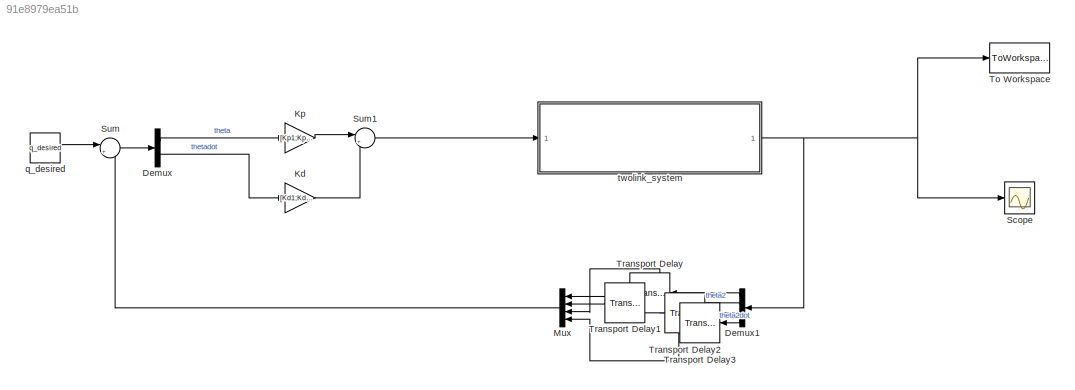
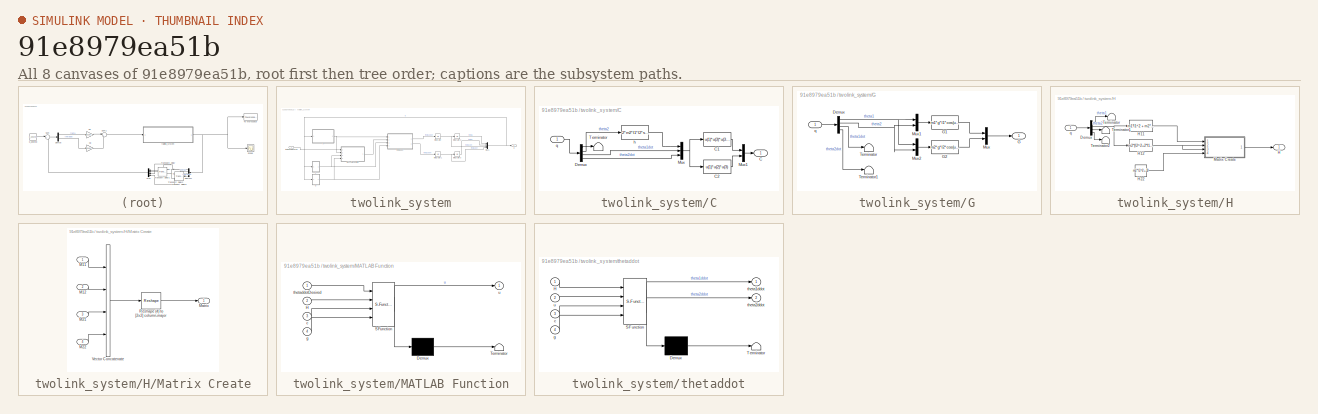
[diagram: thumbnail index - all 8 canvases of the model, root first then tree order]
MODEL slx_91e8979ea51b
KIND model
CONFIG AbsTol = 1e-3
CONFIG EnableMultiTasking = off
CONFIG FixedStep = 0.001
CONFIG InitFcn = twolinkarm_init
CONFIG MaxStep = 0.01
CONFIG MinStep = auto
CONFIG RelTol = 1e-4
CONFIG SampleTimeConstraint = Unconstrained
CONFIG Solver = FixedStepAuto
CONFIG SolverName = FixedStepAuto
CONFIG StartTime = 0.0
CONFIG StopTime = 10.0
BLOCK [Demux] Demux
  DisplayOption = bar
  Outputs = 2
  Ports = [1, 2]
BLOCK [Demux] Demux1
  DisplayOption = bar
  Ports = [1, 4]
BLOCK [Gain] Kd
  Gain = [Kd1;Kd2]
  OutDataTypeStr = Inherit: Inherit via internal rule
  ParamDataTypeStr = Inherit: Inherit via internal rule
  SaturateOnIntegerOverflow = off
BLOCK [Gain] Kp
  Gain = [Kp1;Kp2]
  OutDataTypeStr = Inherit: Inherit via internal rule
  ParamDataTypeStr = Inherit: Inherit via internal rule
  SaturateOnIntegerOverflow = off
BLOCK [Mux] Mux
  DisplayOption = bar
  Ports = [4, 1]
BLOCK [Scope] Scope
  NumInputPorts = 1
  Ports = [1]
  ScopeSpecificationString = Simulink.scopes.TimeScopeBlockCfg('CurrentConfiguration', extmgr.ConfigurationSet(extmgr.Configuration('Core','General UI',true),extmgr.Configuration('Core','Source UI',true),extmgr.Configuration('Sources','WiredSimulink',true),extmgr.Configuration('Visuals','Time Domain',true,'SerializedDisplays',{struct('MinYLimReal','-0.73652','MaxYLimReal','5.95502','YLabelReal','','MinYLimMag','0.00000','MaxY...<+1400ch>
BLOCK [Sum] Sum
  IconShape = round
  InputSameDT = off
  Inputs = |+-
  OutDataTypeStr = Inherit: Inherit via internal rule
  Ports = [2, 1]
  SaturateOnIntegerOverflow = off
BLOCK [Sum] Sum1
  IconShape = round
  InputSameDT = off
  Inputs = |++
  OutDataTypeStr = Inherit: Inherit via internal rule
  Ports = [2, 1]
  SaturateOnIntegerOverflow = off
BLOCK [ToWorkspace] To Workspace
  FixptAsFi = on
  MaxDataPoints = inf
  Ports = [1]
  SampleTime = -1
  Save2DSignal = 3-D array (concatenate along third dimension)
  SaveFormat = Timeseries
  VariableName = q
BLOCK [TransportDelay] Transport Delay
  DelayTime = delayTime1
  Ports = [1, 1]
BLOCK [TransportDelay] Transport Delay1
  DelayTime = delayTime2
  Ports = [1, 1]
BLOCK [TransportDelay] Transport Delay2
  DelayTime = delayTime1
  Ports = [1, 1]
BLOCK [TransportDelay] Transport Delay3
  DelayTime = delayTime2
  Ports = [1, 1]
BLOCK [Constant] q_desired
  Value = q_desired
BLOCK [SubSystem] twolink_system
  Ports = [1, 1]
  RequestExecContextInheritance = off
  Variant = off
BLOCK [SubSystem] twolink_system/C
  Ports = [1, 1]
  RequestExecContextInheritance = off
  Variant = off
BLOCK [Outport] twolink_system/C/C
  IconDisplay = Port number
BLOCK [Fcn] twolink_system/C/C1
  Expr = u(1)*u(3)*u(3)+2*u(1)*u(2)*u(3)
BLOCK [Fcn] twolink_system/C/C2
  Expr = u(1)*u(2)*u(3)
BLOCK [Demux] twolink_system/C/Demux
  DisplayOption = bar
  Ports = [1, 4]
BLOCK [Mux] twolink_system/C/Mux
  DisplayOption = bar
  Inputs = 3
  Ports = [3, 1]
BLOCK [Mux] twolink_system/C/Mux1
  DisplayOption = bar
  Inputs = 2
  Ports = [2, 1]
BLOCK [Terminator] twolink_system/C/Terminator
BLOCK [Fcn] twolink_system/C/h
  Expr = -2*m2*l1*l2*sin(u(1))
BLOCK [Inport] twolink_system/C/q
  IconDisplay = Port number
  PortDimensions = [4 1]
BLOCK [SubSystem] twolink_system/G
  Ports = [1, 1]
  RequestExecContextInheritance = off
  Variant = off
BLOCK [Demux] twolink_system/G/Demux
  DisplayOption = bar
  Ports = [1, 4]
BLOCK [Outport] twolink_system/G/G
  IconDisplay = Port number
BLOCK [Fcn] twolink_system/G/G1
  Expr = m1*g*l1*cos(u(1))+m2*g*(2*l1*cos(u(1))+l2*cos(u(1)+u(2)))
BLOCK [Fcn] twolink_system/G/G2
  Expr = m2*g*l2*cos(u(1)+u(2))
BLOCK [Mux] twolink_system/G/Mux
  DisplayOption = bar
  Inputs = 2
  Ports = [2, 1]
BLOCK [Mux] twolink_system/G/Mux1
  DisplayOption = bar
  Inputs = 2
  Ports = [2, 1]
BLOCK [Mux] twolink_system/G/Mux2
  DisplayOption = bar
  Inputs = 2
  Ports = [2, 1]
BLOCK [Terminator] twolink_system/G/Terminator
BLOCK [Terminator] twolink_system/G/Terminator1
BLOCK [Inport] twolink_system/G/q
  IconDisplay = Port number
  PortDimensions = [4 1]
BLOCK [SubSystem] twolink_system/H
  Ports = [1, 1]
  RequestExecContextInheritance = off
  Variant = off
BLOCK [Demux] twolink_system/H/Demux
  DisplayOption = bar
  Ports = [1, 4]
BLOCK [Outport] twolink_system/H/H
  IconDisplay = Port number
  PortDimensions = [2 2]
BLOCK [Fcn] twolink_system/H/H11
  Expr = m1*l1^2 + m2*(4*l1^2+l2^2+4*l1*l2*cos(u(1)))+J2
BLOCK [Fcn] twolink_system/H/H12
  Expr = m2*(l2^2+2*l1*l2*cos(u(1)));
BLOCK [Constant] twolink_system/H/H22
  Value = m2*l2^2+J2
BLOCK [SubSystem] twolink_system/H/Matrix Create
  Ports = [4, 1]
  RequestExecContextInheritance = off
  Variant = off
BLOCK [Inport] twolink_system/H/Matrix Create/M11
  IconDisplay = Port number
  PortDimensions = 1
BLOCK [Inport] twolink_system/H/Matrix Create/M12
  IconDisplay = Port number
  Port = 2
  PortDimensions = 1
BLOCK [Inport] twolink_system/H/Matrix Create/M21
  IconDisplay = Port number
  Port = 3
  PortDimensions = 1
BLOCK [Inport] twolink_system/H/Matrix Create/M22
  IconDisplay = Port number
  Port = 4
  PortDimensions = 1
BLOCK [Outport] twolink_system/H/Matrix Create/Matrix
  IconDisplay = Port number
BLOCK [Reshape] twolink_system/H/Matrix Create/Reshape (4) to [2x2] column-major
  OutputDimensionality = Customize
  OutputDimensions = [2,2]
  Ports = [1, 1]
BLOCK [Concatenate] twolink_system/H/Matrix Create/Vector Concatenate
  NumInputs = 4
  Ports = [4, 1]
BLOCK [Terminator] twolink_system/H/Terminator
BLOCK [Terminator] twolink_system/H/Terminator1
BLOCK [Terminator] twolink_system/H/Terminator2
BLOCK [Inport] twolink_system/H/q
  IconDisplay = Port number
  PortDimensions = [4 1]
BLOCK [Integrator] twolink_system/Integrator
  InitialCondition = q_init(3)
  Ports = [1, 1]
BLOCK [Integrator] twolink_system/Integrator1
  InitialCondition = q_init(4)
  Ports = [1, 1]
BLOCK [Integrator] twolink_system/Integrator2
  InitialCondition = q_init(1)
  Ports = [1, 1]
BLOCK [Integrator] twolink_system/Integrator3
  InitialCondition = q_init(2)
  Ports = [1, 1]
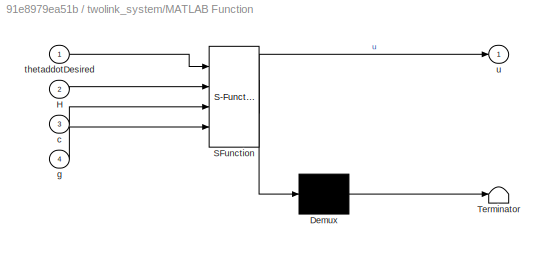
BLOCK [SubSystem] twolink_system/MATLAB Function
  ErrorFcn = Stateflow.Translate.translate
  PermitHierarchicalResolution = ExplicitOnly
  Ports = [4, 1]
  RequestExecContextInheritance = off
  SFBlockType = MATLAB Function
  TreatAsAtomicUnit = on
  Variant = off
BLOCK [Demux] twolink_system/MATLAB Function/ Demux 
  Outputs = 1
  Ports = [1, 1]
BLOCK [S-Function] twolink_system/MATLAB Function/ SFunction 
  EnableBusSupport = on
  FunctionName = sf_sfun
  PortCounts = [4 2]
  Ports = [4, 2]
  SFcnIsStateOwnerBlock = off
  SFunctionDeploymentMode = off
  Tag = Stateflow S-Function twolinkarm_pd 1
BLOCK [Terminator] twolink_system/MATLAB Function/ Terminator 
BLOCK [Inport] twolink_system/MATLAB Function/H
  IconDisplay = Port number
  Port = 2
BLOCK [Inport] twolink_system/MATLAB Function/c
  IconDisplay = Port number
  Port = 3
BLOCK [Inport] twolink_system/MATLAB Function/g
  IconDisplay = Port number
  Port = 4
BLOCK [Inport] twolink_system/MATLAB Function/thetaddotDesired
  IconDisplay = Port number
BLOCK [Outport] twolink_system/MATLAB Function/u
  IconDisplay = Port number
BLOCK [Mux] twolink_system/Mux1
  DisplayOption = bar
  Ports = [4, 1]
BLOCK [Outport] twolink_system/q
  IconDisplay = Port number
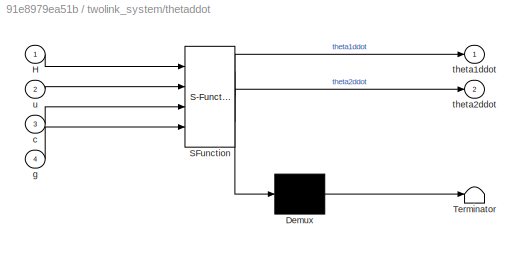
BLOCK [SubSystem] twolink_system/thetaddot
  ErrorFcn = Stateflow.Translate.translate
  PermitHierarchicalResolution = ExplicitOnly
  Ports = [4, 2]
  RequestExecContextInheritance = off
  SFBlockType = MATLAB Function
  TreatAsAtomicUnit = on
  Variant = off
BLOCK [Demux] twolink_system/thetaddot/ Demux 
  Outputs = 1
  Ports = [1, 1]
BLOCK [S-Function] twolink_system/thetaddot/ SFunction 
  EnableBusSupport = on
  FunctionName = sf_sfun
  PortCounts = [4 3]
  Ports = [4, 3]
  SFcnIsStateOwnerBlock = off
  SFunctionDeploymentMode = off
  Tag = Stateflow S-Function twolinkarm_pd 2
BLOCK [Terminator] twolink_system/thetaddot/ Terminator 
BLOCK [Inport] twolink_system/thetaddot/H
  IconDisplay = Port number
BLOCK [Inport] twolink_system/thetaddot/c
  IconDisplay = Port number
  Port = 3
BLOCK [Inport] twolink_system/thetaddot/g
  IconDisplay = Port number
  Port = 4
BLOCK [Outport] twolink_system/thetaddot/theta1ddot
  IconDisplay = Port number
BLOCK [Outport] twolink_system/thetaddot/theta2ddot
  IconDisplay = Port number
  Port = 2
BLOCK [Inport] twolink_system/thetaddot/u
  IconDisplay = Port number
  Port = 2
BLOCK [Inport] twolink_system/thetaddotDesired 
  IconDisplay = Port number
  PortDimensions = [2 1]
LINE Demux1:1 -> Transport Delay:1
LINE Demux1:2 -> Transport Delay1:1
LINE Demux1:3 -> Transport Delay2:1
LINE Demux1:4 -> Transport Delay3:1
LINE Demux:1 -> Kp:1
LINE Demux:2 -> Kd:1
LINE Kd:1 -> Sum1:2
LINE Kp:1 -> Sum1:1
LINE Mux:1 -> Sum:2
LINE Sum1:1 -> twolink_system:1
LINE Sum:1 -> Demux:1
LINE Transport Delay1:1 -> Mux:2
LINE Transport Delay2:1 -> Mux:3
LINE Transport Delay3:1 -> Mux:4
LINE Transport Delay:1 -> Mux:1
LINE q_desired:1 -> Sum:1
LINE twolink_system/C/C1:1 -> twolink_system/C/Mux1:1
LINE twolink_system/C/C2:1 -> twolink_system/C/Mux1:2
LINE twolink_system/C/Demux:1 -> twolink_system/C/Terminator:1
LINE twolink_system/C/Demux:2 -> twolink_system/C/h:1
LINE twolink_system/C/Demux:3 -> twolink_system/C/Mux:2
LINE twolink_system/C/Demux:4 -> twolink_system/C/Mux:3
LINE twolink_system/C/Mux1:1 -> twolink_system/C/C:1
NET twolink_system/C/Mux:1 -> twolink_system/C/C1:1, twolink_system/C/C2:1
LINE twolink_system/C/h:1 -> twolink_system/C/Mux:1
LINE twolink_system/C/q:1 -> twolink_system/C/Demux:1
NET twolink_system/C:1 -> twolink_system/MATLAB Function:3, twolink_system/thetaddot:3
NET twolink_system/G/Demux:1 -> twolink_system/G/Mux1:1, twolink_system/G/Mux2:1
NET twolink_system/G/Demux:2 -> twolink_system/G/Mux1:2, twolink_system/G/Mux2:2
LINE twolink_system/G/Demux:3 -> twolink_system/G/Terminator:1
LINE twolink_system/G/Demux:4 -> twolink_system/G/Terminator1:1
LINE twolink_system/G/G1:1 -> twolink_system/G/Mux:1
LINE twolink_system/G/G2:1 -> twolink_system/G/Mux:2
LINE twolink_system/G/Mux1:1 -> twolink_system/G/G1:1
LINE twolink_system/G/Mux2:1 -> twolink_system/G/G2:1
LINE twolink_system/G/Mux:1 -> twolink_system/G/G:1
LINE twolink_system/G/q:1 -> twolink_system/G/Demux:1
NET twolink_system/G:1 -> twolink_system/MATLAB Function:4, twolink_system/thetaddot:4
LINE twolink_system/H/Demux:1 -> twolink_system/H/Terminator:1
NET twolink_system/H/Demux:2 -> twolink_system/H/H11:1, twolink_system/H/H12:1
LINE twolink_system/H/Demux:3 -> twolink_system/H/Terminator1:1
LINE twolink_system/H/Demux:4 -> twolink_system/H/Terminator2:1
LINE twolink_system/H/H11:1 -> twolink_system/H/Matrix Create:1
NET twolink_system/H/H12:1 -> twolink_system/H/Matrix Create:2, twolink_system/H/Matrix Create:3
LINE twolink_system/H/H22:1 -> twolink_system/H/Matrix Create:4
LINE twolink_system/H/Matrix Create/M11:1 -> twolink_system/H/Matrix Create/Vector Concatenate:1
LINE twolink_system/H/Matrix Create/M12:1 -> twolink_system/H/Matrix Create/Vector Concatenate:2
LINE twolink_system/H/Matrix Create/M21:1 -> twolink_system/H/Matrix Create/Vector Concatenate:3
LINE twolink_system/H/Matrix Create/M22:1 -> twolink_system/H/Matrix Create/Vector Concatenate:4
LINE twolink_system/H/Matrix Create/Reshape (4) to [2x2] column-major:1 -> twolink_system/H/Matrix Create/Matrix:1
LINE twolink_system/H/Matrix Create/Vector Concatenate:1 -> twolink_system/H/Matrix Create/Reshape (4) to [2x2] column-major:1
LINE twolink_system/H/Matrix Create:1 -> twolink_system/H/H:1
LINE twolink_system/H/q:1 -> twolink_system/H/Demux:1
NET twolink_system/H:1 -> twolink_system/MATLAB Function:2, twolink_system/thetaddot:1
NET twolink_system/Integrator1:1 -> twolink_system/Integrator3:1, twolink_system/Mux1:4
LINE twolink_system/Integrator2:1 -> twolink_system/Mux1:1
LINE twolink_system/Integrator3:1 -> twolink_system/Mux1:2
NET twolink_system/Integrator:1 -> twolink_system/Integrator2:1, twolink_system/Mux1:3
LINE twolink_system/MATLAB Function:1 -> twolink_system/thetaddot:2
NET twolink_system/Mux1:1 -> twolink_system/C:1, twolink_system/G:1, twolink_system/H:1, twolink_system/q:1
LINE twolink_system/thetaddot:1 -> twolink_system/Integrator:1
LINE twolink_system/thetaddot:2 -> twolink_system/Integrator1:1
LINE twolink_system/thetaddotDesired :1 -> twolink_system/MATLAB Function:1
NET twolink_system:1 -> Demux1:1, Scope:1, To Workspace:1
note: NET lines group one-source signal fan-out (src -> all destinations, sorted); 1:1 wires keep LINE
CHART twolink_system/MATLAB Function states=1 transitions=1
  STATE_LABEL 'eML_blk_kernel()'
  STATE_LABEL 'SCRIPT:\nfunction u = fcn(thetaddotDesired,H,c,g)\nu = thetaddotDesired;\n\n'
CHART twolink_system/thetaddot states=1 transitions=1
  STATE_LABEL 'eML_blk_kernel()'
  STATE_LABEL 'SCRIPT:\nfunction [theta1ddot,theta2ddot] = theta(H,u,c,g)\nS = H^(-1)*(u-c-g);\ntheta1ddot = S(1);\ntheta2ddot = S(2);\nend\n'
